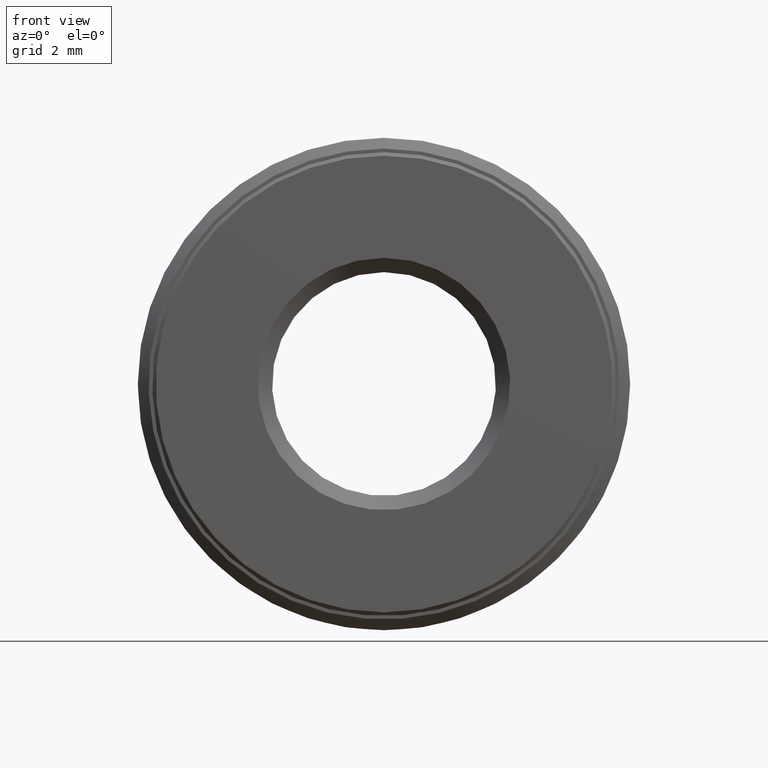
[diagram: clean part render]
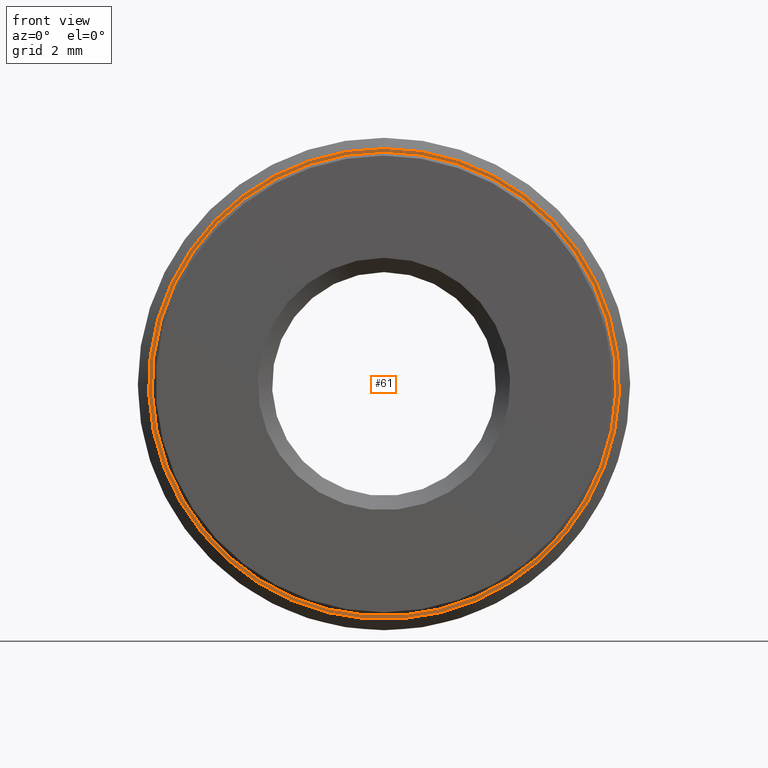
[diagram: same view with one face highlighted and labeled with its STEP entity id]
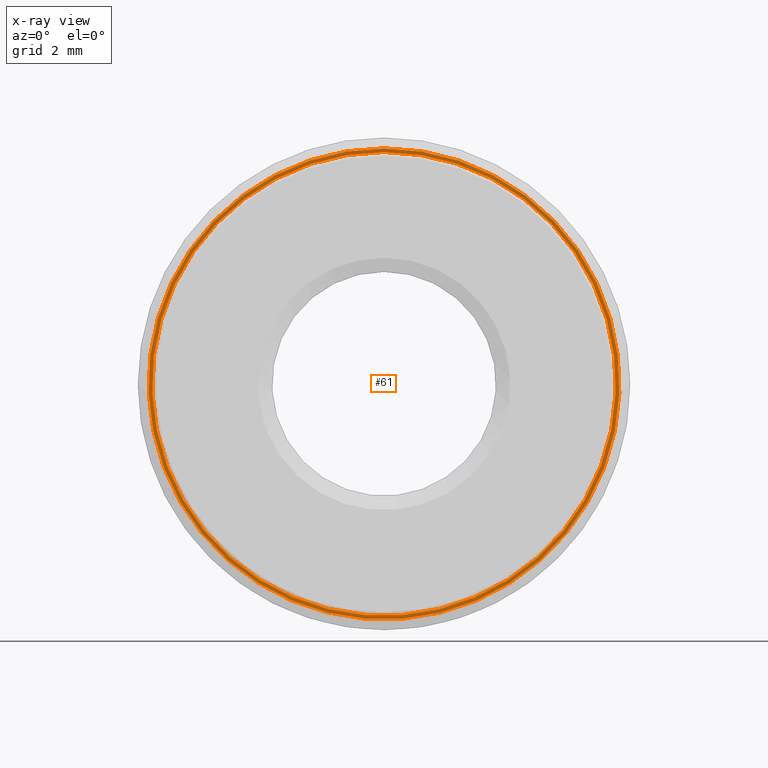
[diagram: x-ray of the same camera — body ghosted, the highlighted face saturated]
A machine part, front view. The second image highlights one B-rep face of the part: STEP entity #61.
The next image is the same camera in x-ray: the body ghosted, the highlighted face saturated — about 0% of this face is hidden behind the body in this view.
In plain terms, the highlighted planar face has unit normal (-0, 1, 0).
Its self-contained STEP definition (entity closure, byte-faithful):
#27 = AXIS2_PLACEMENT_3D ( 'NONE', #509, #231, #229 ) ;
#45 = EDGE_CURVE ( 'NONE', #506, #506, #510, .T. ) ;
#46 = PLANE ( 'NONE',  #27 ) ;
#61 = ADVANCED_FACE ( 'NONE', ( #384, #63 ), #46, .F. ) ;
#63 = FACE_BOUND ( 'NONE', #163, .T. ) ;
#163 = EDGE_LOOP ( 'NONE', ( #502 ) ) ;
#190 = ORIENTED_EDGE ( 'NONE', *, *, #45, .F. ) ;
#204 = AXIS2_PLACEMENT_3D ( 'NONE', #443, #391, #575 ) ;
#229 = DIRECTION ( 'NONE',  ( 0.0000000000000000000, 0.0000000000000000000, 1.000000000000000000 ) ) ;
#231 = DIRECTION ( 'NONE',  ( -0.0000000000000000000, 1.000000000000000000, 0.0000000000000000000 ) ) ;
#232 = EDGE_LOOP ( 'NONE', ( #190 ) ) ;
#236 = DIRECTION ( 'NONE',  ( 0.0000000000000000000, 0.0000000000000000000, 1.000000000000000000 ) ) ;
#256 = CARTESIAN_POINT ( 'NONE',  ( 0.0000000000000000000, -6.582533970634581700E-018, 0.3237499999999999300 ) ) ;
#276 = DIRECTION ( 'NONE',  ( -0.0000000000000000000, 1.000000000000000000, -0.0000000000000000000 ) ) ;
#282 = CIRCLE ( 'NONE', #204, 0.3237499999999999300 ) ;
#351 = CARTESIAN_POINT ( 'NONE',  ( 0.0000000000000000000, -6.402768735150615400E-018, 0.3287499999999999900 ) ) ;
#384 = FACE_OUTER_BOUND ( 'NONE', #232, .T. ) ;
#391 = DIRECTION ( 'NONE',  ( -0.0000000000000000000, 1.000000000000000000, -0.0000000000000000000 ) ) ;
#427 = VERTEX_POINT ( 'NONE', #256 ) ;
#435 = EDGE_CURVE ( 'NONE', #427, #427, #282, .T. ) ;
#443 = CARTESIAN_POINT ( 'NONE',  ( 0.0000000000000000000, -6.582533970634581700E-018, 0.0000000000000000000 ) ) ;
#478 = AXIS2_PLACEMENT_3D ( 'NONE', #513, #276, #236 ) ;
#502 = ORIENTED_EDGE ( 'NONE', *, *, #435, .T. ) ;
#506 = VERTEX_POINT ( 'NONE', #351 ) ;
#509 = CARTESIAN_POINT ( 'NONE',  ( -6.548034062875702500E-034, -6.492651352892599700E-018, 0.0000000000000000000 ) ) ;
#510 = CIRCLE ( 'NONE', #478, 0.3287499999999999900 ) ;
#513 = CARTESIAN_POINT ( 'NONE',  ( 0.0000000000000000000, -6.402768735150615400E-018, 0.0000000000000000000 ) ) ;
#575 = DIRECTION ( 'NONE',  ( 0.0000000000000000000, 0.0000000000000000000, 1.000000000000000000 ) ) ;